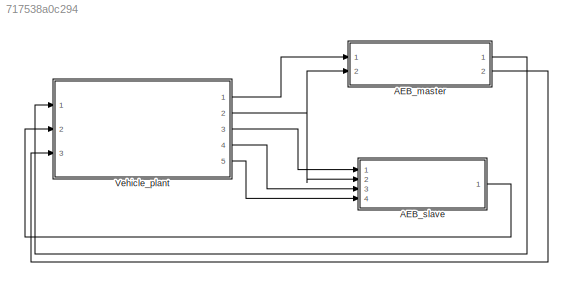
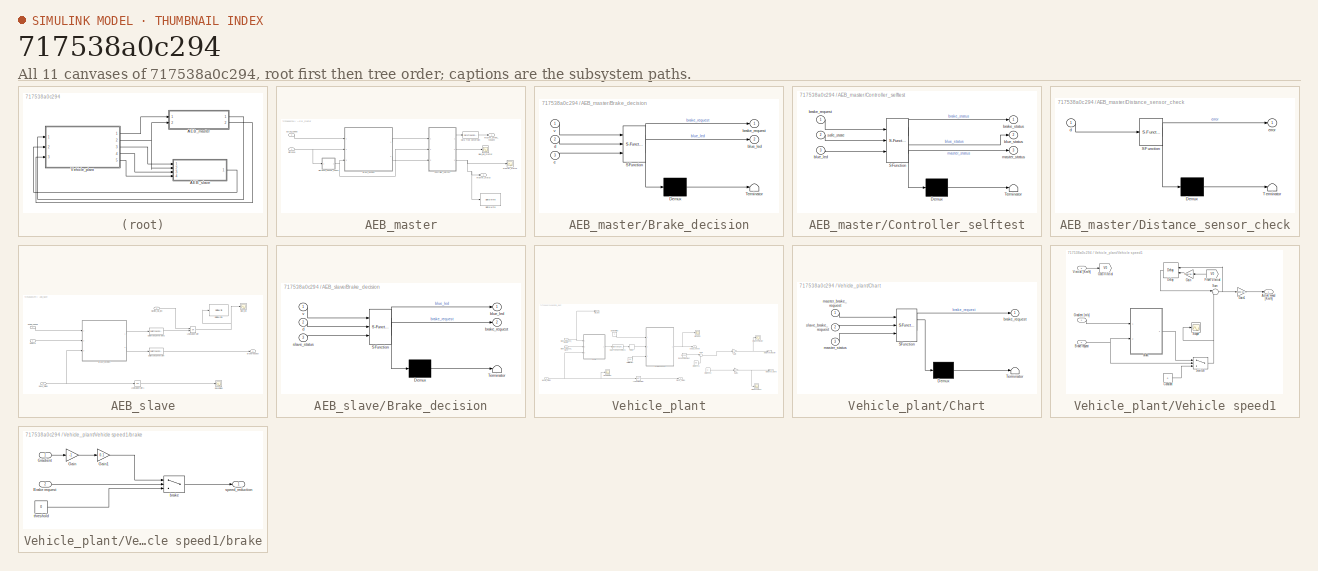
[diagram: thumbnail index - all 11 canvases of the model, root first then tree order]
MODEL slx_717538a0c294
KIND model
CONFIG AbsTol = auto
CONFIG FixedStep = 0.1
CONFIG MaxStep = auto
CONFIG MinStep = auto
CONFIG RelTol = 1e-3
CONFIG SampleTimeConstraint = Unconstrained
CONFIG Solver = FixedStepDiscrete
CONFIG SolverMode = Auto
CONFIG SolverName = FixedStepDiscrete
CONFIG StartTime = 0.0
CONFIG StopTime = inf
BLOCK [SubSystem] AEB_master
  Ports = [2, 2]
  RequestExecContextInheritance = off
  Variant = off
BLOCK [Scope] AEB_master/Blue_led_master
  Ports = [1]
  ScopeSpecificationString = Simulink.scopes.TimeScopeBlockCfg('CurrentConfiguration', extmgr.ConfigurationSet(extmgr.Configuration('Core','General UI',true),extmgr.Configuration('Core','Source UI',true),extmgr.Configuration('Sources','WiredSimulink',true,'DataLoggingVariableName','ScopeData1'),extmgr.Configuration('Visuals','Time Domain',true,'SerializedDisplays',{struct('MinYLimReal','-0.125','MaxYLimReal','1.125','YLabelRe...<+1481ch>
BLOCK [SubSystem] AEB_master/Brake_decision
  ErrorFcn = Stateflow.Translate.translate
  PermitHierarchicalResolution = ExplicitOnly
  Ports = [3, 2]
  RequestExecContextInheritance = off
  SFBlockType = Chart
  TreatAsAtomicUnit = on
  Variant = off
BLOCK [Demux] AEB_master/Brake_decision/ Demux 
  Outputs = 1
  Ports = [1, 1]
BLOCK [S-Function] AEB_master/Brake_decision/ SFunction 
  EnableBusSupport = on
  FunctionName = sf_sfun
  PortCounts = [3 3]
  Ports = [3, 3]
  SFunctionDeploymentMode = off
  Tag = Stateflow S-Function aebMS 3
BLOCK [Terminator] AEB_master/Brake_decision/ Terminator 
BLOCK [Outport] AEB_master/Brake_decision/blue_led
  IconDisplay = Port number
  Port = 2
BLOCK [Outport] AEB_master/Brake_decision/brake_request
  IconDisplay = Port number
BLOCK [Inport] AEB_master/Brake_decision/d
  IconDisplay = Port number
  Port = 2
BLOCK [Inport] AEB_master/Brake_decision/e
  IconDisplay = Port number
  Port = 3
BLOCK [Inport] AEB_master/Brake_decision/v
  IconDisplay = Port number
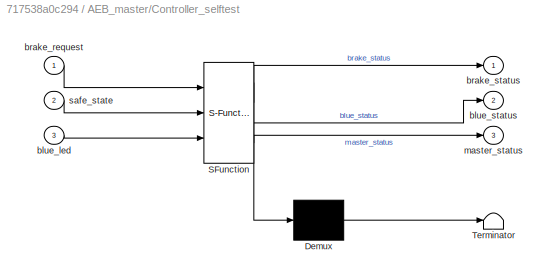
BLOCK [SubSystem] AEB_master/Controller_selftest
  ErrorFcn = Stateflow.Translate.translate
  PermitHierarchicalResolution = ExplicitOnly
  Ports = [3, 3]
  RequestExecContextInheritance = off
  SFBlockType = Chart
  TreatAsAtomicUnit = on
  Variant = off
BLOCK [Demux] AEB_master/Controller_selftest/ Demux 
  Outputs = 1
  Ports = [1, 1]
BLOCK [S-Function] AEB_master/Controller_selftest/ SFunction 
  EnableBusSupport = on
  FunctionName = sf_sfun
  PortCounts = [3 4]
  Ports = [3, 4]
  SFunctionDeploymentMode = off
  Tag = Stateflow S-Function aebMS 2
BLOCK [Terminator] AEB_master/Controller_selftest/ Terminator 
BLOCK [Inport] AEB_master/Controller_selftest/blue_led
  IconDisplay = Port number
  Port = 3
BLOCK [Outport] AEB_master/Controller_selftest/blue_status
  IconDisplay = Port number
  Port = 2
BLOCK [Inport] AEB_master/Controller_selftest/brake_request
  IconDisplay = Port number
BLOCK [Outport] AEB_master/Controller_selftest/brake_status
  IconDisplay = Port number
BLOCK [Outport] AEB_master/Controller_selftest/master_status
  IconDisplay = Port number
  Port = 3
BLOCK [Inport] AEB_master/Controller_selftest/safe_state
  IconDisplay = Port number
  Port = 2
BLOCK [DataTypeConversion] AEB_master/Data Type Conversion
  RndMeth = Floor
  SaturateOnIntegerOverflow = off
BLOCK [Reference] AEB_master/Digital Write  REF=frdmk64flib/Digital Write
  Ports = [1]
  SourceBlock = frdmk64flib/Digital Write
  SourceType = freedomk64f.DigitalWrite
BLOCK [SubSystem] AEB_master/Distance_sensor_check
  ErrorFcn = Stateflow.Translate.translate
  PermitHierarchicalResolution = ExplicitOnly
  Ports = [1, 1]
  RequestExecContextInheritance = off
  SFBlockType = Chart
  TreatAsAtomicUnit = on
  Variant = off
BLOCK [Demux] AEB_master/Distance_sensor_check/ Demux 
  Outputs = 1
  Ports = [1, 1]
BLOCK [S-Function] AEB_master/Distance_sensor_check/ SFunction 
  EnableBusSupport = on
  FunctionName = sf_sfun
  PortCounts = [1 2]
  Ports = [1, 2]
  SFunctionDeploymentMode = off
  Tag = Stateflow S-Function aebMS 1
BLOCK [Terminator] AEB_master/Distance_sensor_check/ Terminator 
BLOCK [Inport] AEB_master/Distance_sensor_check/d
  IconDisplay = Port number
BLOCK [Outport] AEB_master/Distance_sensor_check/error
  IconDisplay = Port number
BLOCK [Scope] AEB_master/Master_status
  Ports = [1]
  ScopeSpecificationString = Simulink.scopes.TimeScopeBlockCfg('CurrentConfiguration', extmgr.ConfigurationSet(extmgr.Configuration('Core','General UI',true),extmgr.Configuration('Core','Source UI',true),extmgr.Configuration('Sources','WiredSimulink',true,'DataLoggingVariableName','ScopeData2'),extmgr.Configuration('Visuals','Time Domain',true,'SerializedDisplays',{struct('MinYLimReal','-0.125','MaxYLimReal','1.125','YLabelRe...<+1478ch>
BLOCK [Inport] AEB_master/actual_speed
  IconDisplay = Port number
  Port = 2
BLOCK [Inport] AEB_master/distance
  IconDisplay = Port number
BLOCK [Outport] AEB_master/master_brake_request
  IconDisplay = Port number
BLOCK [Outport] AEB_master/master_status
  IconDisplay = Port number
  Port = 2
BLOCK [SubSystem] AEB_slave
  Ports = [4, 1]
  RequestExecContextInheritance = off
  Variant = off
BLOCK [Scope] AEB_slave/Blue_led
  Ports = [1]
  ScopeSpecificationString = Simulink.scopes.TimeScopeBlockCfg('CurrentConfiguration', extmgr.ConfigurationSet(extmgr.Configuration('Core','General UI',true),extmgr.Configuration('Core','Source UI',true),extmgr.Configuration('Sources','WiredSimulink',true,'DataLoggingVariableName','ScopeData1'),extmgr.Configuration('Visuals','Time Domain',true,'SerializedDisplays',{struct('MinYLimReal','-0.125','MaxYLimReal','1.125','YLabelRe...<+1461ch>
BLOCK [SubSystem] AEB_slave/Brake_decision
  ErrorFcn = Stateflow.Translate.translate
  PermitHierarchicalResolution = ExplicitOnly
  Ports = [3, 2]
  RequestExecContextInheritance = off
  SFBlockType = Chart
  TreatAsAtomicUnit = on
  Variant = off
BLOCK [Demux] AEB_slave/Brake_decision/ Demux 
  Outputs = 1
  Ports = [1, 1]
BLOCK [S-Function] AEB_slave/Brake_decision/ SFunction 
  EnableBusSupport = on
  FunctionName = sf_sfun
  PortCounts = [3 3]
  Ports = [3, 3]
  SFunctionDeploymentMode = off
  Tag = Stateflow S-Function aebMS 4
BLOCK [Terminator] AEB_slave/Brake_decision/ Terminator 
BLOCK [Outport] AEB_slave/Brake_decision/blue_led
  IconDisplay = Port number
BLOCK [Outport] AEB_slave/Brake_decision/brake_request
  IconDisplay = Port number
  Port = 2
BLOCK [Inport] AEB_slave/Brake_decision/d
  IconDisplay = Port number
  Port = 2
BLOCK [Inport] AEB_slave/Brake_decision/slave_status
  IconDisplay = Port number
  Port = 3
BLOCK [Inport] AEB_slave/Brake_decision/v
  IconDisplay = Port number
BLOCK [DataTypeConversion] AEB_slave/Data Type Conversion
  OutDataTypeStr = boolean
  RndMeth = Floor
  SaturateOnIntegerOverflow = off
BLOCK [DataTypeConversion] AEB_slave/Data Type Conversion2
  OutDataTypeStr = boolean
  RndMeth = Floor
  SaturateOnIntegerOverflow = off
BLOCK [Reference] AEB_slave/Digital Write1  REF=frdmk64flib/Digital Write
  Ports = [1]
  SourceBlock = frdmk64flib/Digital Write
  SourceType = freedomk64f.DigitalWrite
BLOCK [Logic] AEB_slave/Logical Operator
  AllPortsSameDT = off
  Operator = OR
  OutDataTypeStr = boolean
  Ports = [2, 1]
BLOCK [Logic] AEB_slave/Logical Operator1
  AllPortsSameDT = off
  Operator = NOT
  OutDataTypeStr = boolean
  Ports = [1, 1]
BLOCK [Inport] AEB_slave/Masted_blu_led
  IconDisplay = Port number
  Port = 4
BLOCK [Scope] AEB_slave/SlaveStatus
  Ports = [1]
  ScopeSpecificationString = Simulink.scopes.TimeScopeBlockCfg('CurrentConfiguration', extmgr.ConfigurationSet(extmgr.Configuration('Core','General UI',true),extmgr.Configuration('Core','Source UI',true),extmgr.Configuration('Sources','WiredSimulink',true,'DataLoggingVariableName','ScopeData2'),extmgr.Configuration('Visuals','Time Domain',true,'SerializedDisplays',{struct('MinYLimReal','-0.05421','MaxYLimReal','1.02659','YLab...<+1450ch>
BLOCK [Inport] AEB_slave/actual_speed
  IconDisplay = Port number
  Port = 2
BLOCK [Outport] AEB_slave/brake request
  IconDisplay = Port number
  OutDataTypeStr = boolean
BLOCK [Inport] AEB_slave/distance
  IconDisplay = Port number
BLOCK [Inport] AEB_slave/slave_status
  IconDisplay = Port number
  Port = 3
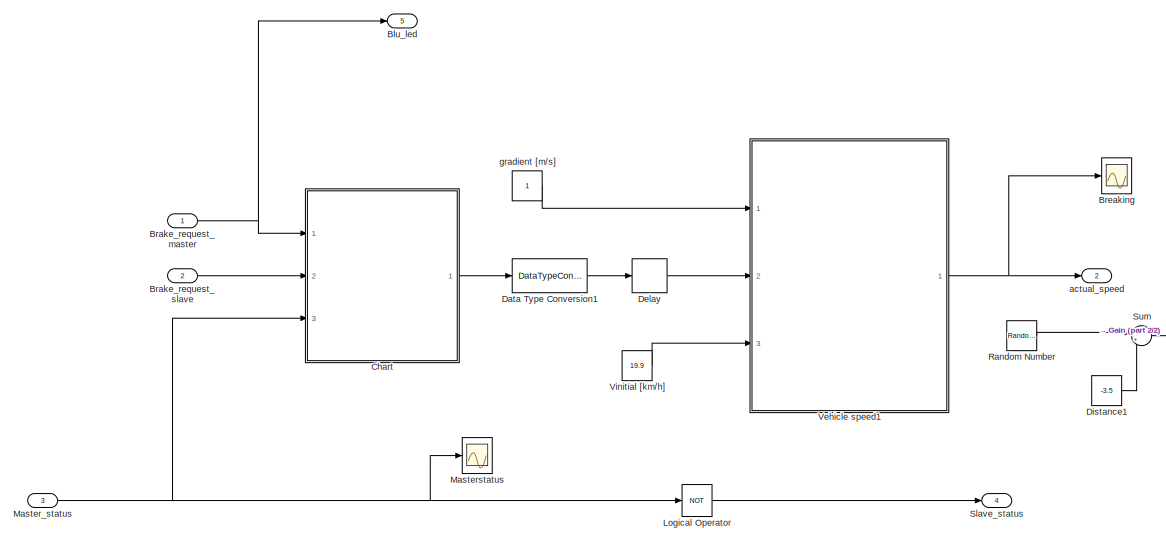
[diagram: Vehicle_plant - part 1/2, center side, full height]
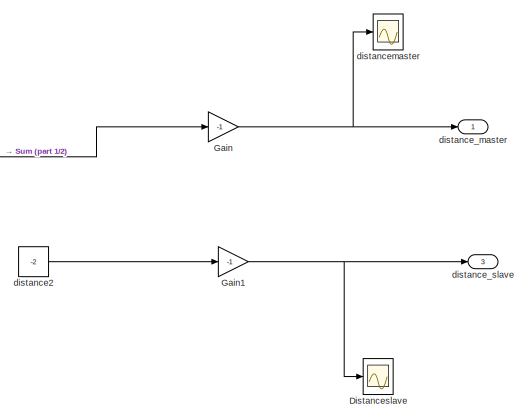
[diagram: Vehicle_plant - part 2/2, middle right region]
BLOCK [SubSystem] Vehicle_plant
  Ports = [3, 5]
  RequestExecContextInheritance = off
  Variant = off
BLOCK [Outport] Vehicle_plant/Blu_led
  IconDisplay = Port number
  Port = 5
BLOCK [Inport] Vehicle_plant/Brake_request_master
  IconDisplay = Port number
  OutDataTypeStr = boolean
BLOCK [Inport] Vehicle_plant/Brake_request_slave
  IconDisplay = Port number
  Port = 2
BLOCK [Scope] Vehicle_plant/Breaking
  Ports = [1]
  ScopeSpecificationString = Simulink.scopes.TimeScopeBlockCfg('CurrentConfiguration', extmgr.ConfigurationSet(extmgr.Configuration('Core','General UI',true),extmgr.Configuration('Core','Source UI',true),extmgr.Configuration('Sources','WiredSimulink',true,'DataLoggingVariableName','ScopeData1'),extmgr.Configuration('Visuals','Time Domain',true,'SerializedDisplays',{struct('MinYLimReal','17.065','MaxYLimReal','20.215','YLabelR...<+1466ch>
BLOCK [SubSystem] Vehicle_plant/Chart
  ErrorFcn = Stateflow.Translate.translate
  PermitHierarchicalResolution = ExplicitOnly
  Ports = [3, 1]
  RequestExecContextInheritance = off
  SFBlockType = Chart
  TreatAsAtomicUnit = on
  Variant = off
BLOCK [Demux] Vehicle_plant/Chart/ Demux 
  Outputs = 1
  Ports = [1, 1]
BLOCK [S-Function] Vehicle_plant/Chart/ SFunction 
  EnableBusSupport = on
  FunctionName = sf_sfun
  PortCounts = [3 2]
  Ports = [3, 2]
  SFunctionDeploymentMode = off
  Tag = Stateflow S-Function aebMS 8
BLOCK [Terminator] Vehicle_plant/Chart/ Terminator 
BLOCK [Outport] Vehicle_plant/Chart/brake_request
  IconDisplay = Port number
BLOCK [Inport] Vehicle_plant/Chart/master_brake_request
  IconDisplay = Port number
BLOCK [Inport] Vehicle_plant/Chart/master_status
  IconDisplay = Port number
  Port = 3
BLOCK [Inport] Vehicle_plant/Chart/slave_brake_request
  IconDisplay = Port number
  Port = 2
BLOCK [DataTypeConversion] Vehicle_plant/Data Type Conversion1
  RndMeth = Floor
  SaturateOnIntegerOverflow = off
BLOCK [Delay] Vehicle_plant/Delay
  DelayLength = 1
  InitialCondition = 0
  InputPortMap = u0
  Ports = [1, 1]
BLOCK [Constant] Vehicle_plant/Distance1
  Value = -3.5
BLOCK [Scope] Vehicle_plant/Distanceslave
  Ports = [1]
  ScopeSpecificationString = Simulink.scopes.TimeScopeBlockCfg('CurrentConfiguration', extmgr.ConfigurationSet(extmgr.Configuration('Core','General UI',true),extmgr.Configuration('Core','Source UI',true),extmgr.Configuration('Sources','WiredSimulink',true,'DataLoggingVariableName','ScopeData1'),extmgr.Configuration('Visuals','Time Domain',true,'SerializedDisplays',{struct('MinYLimReal','-92.6','MaxYLimReal','32.4','YLabelReal...<+1458ch>
BLOCK [Gain] Vehicle_plant/Gain
  Gain = -1
  OutDataTypeStr = Inherit: Inherit via internal rule
  ParamDataTypeStr = Inherit: Inherit via internal rule
  SaturateOnIntegerOverflow = off
BLOCK [Gain] Vehicle_plant/Gain1
  Gain = -1
  OutDataTypeStr = Inherit: Inherit via internal rule
  ParamDataTypeStr = Inherit: Inherit via internal rule
  SaturateOnIntegerOverflow = off
BLOCK [Logic] Vehicle_plant/Logical Operator
  AllPortsSameDT = off
  Operator = NOT
  OutDataTypeStr = boolean
  Ports = [1, 1]
BLOCK [Inport] Vehicle_plant/Master_status
  IconDisplay = Port number
  Port = 3
BLOCK [Scope] Vehicle_plant/Masterstatus
  Ports = [1]
  ScopeSpecificationString = Simulink.scopes.TimeScopeBlockCfg('CurrentConfiguration', extmgr.ConfigurationSet(extmgr.Configuration('Core','General UI',true),extmgr.Configuration('Core','Source UI',true),extmgr.Configuration('Sources','WiredSimulink',true,'DataLoggingVariableName','ScopeData1'),extmgr.Configuration('Visuals','Time Domain',true,'SerializedDisplays',{struct('MinYLimReal','-1.00000','MaxYLimReal','1.00000','YLab...<+1447ch>
BLOCK [RandomNumber] Vehicle_plant/Random Number
  Mean = 0.5
  SampleTime = 0.1
  Variance = .5
BLOCK [Outport] Vehicle_plant/Slave_status
  IconDisplay = Port number
  Port = 4
BLOCK [Sum] Vehicle_plant/Sum
  IconShape = round
  InputSameDT = off
  Inputs = |++
  OutDataTypeStr = Inherit: Inherit via internal rule
  Ports = [2, 1]
  SaturateOnIntegerOverflow = off
BLOCK [SubSystem] Vehicle_plant/Vehicle speed1
  Ports = [3, 1]
  RequestExecContextInheritance = off
  Variant = off
BLOCK [Outport] Vehicle_plant/Vehicle speed1/Actual speed [Km//h]
  IconDisplay = Port number
BLOCK [Inport] Vehicle_plant/Vehicle speed1/Brake request
  IconDisplay = Port number
  Port = 2
BLOCK [Constant] Vehicle_plant/Vehicle speed1/Constant
  Value = 0
BLOCK [Delay] Vehicle_plant/Vehicle speed1/Delay
  DelayLength = 1
  InitialCondition = 0
  InitialConditionSource = Input port
  InputPortMap = u0,p4
  Ports = [2, 1]
BLOCK [From] Vehicle_plant/Vehicle speed1/From Vinitial
  GotoTag = V0
BLOCK [Gain] Vehicle_plant/Vehicle speed1/Gain
  Gain = 1000/3600
  OutDataTypeStr = Inherit: Inherit via internal rule
  ParamDataTypeStr = Inherit: Inherit via internal rule
  SaturateOnIntegerOverflow = off
BLOCK [Gain] Vehicle_plant/Vehicle speed1/Gain1
  Gain = 3600/1000
  OutDataTypeStr = Inherit: Inherit via internal rule
  ParamDataTypeStr = Inherit: Inherit via internal rule
  SaturateOnIntegerOverflow = off
BLOCK [Goto] Vehicle_plant/Vehicle speed1/Goto Vinitial
  GotoTag = V0
BLOCK [Inport] Vehicle_plant/Vehicle speed1/Gradient [m//s]
  IconDisplay = Port number
BLOCK [Scope] Vehicle_plant/Vehicle speed1/Scope
  Ports = [1]
  ScopeSpecificationString = Simulink.scopes.TimeScopeBlockCfg('CurrentConfiguration', extmgr.ConfigurationSet(extmgr.Configuration('Core','General UI',true),extmgr.Configuration('Core','Source UI',true),extmgr.Configuration('Sources','WiredSimulink',true,'DataLoggingVariableName','ScopeData1'),extmgr.Configuration('Visuals','Time Domain',true,'SerializedDisplays',{struct('MinYLimReal','-0.1125','MaxYLimReal','0.0125','YLabel...<+1414ch>
BLOCK [Sum] Vehicle_plant/Vehicle speed1/Sum
  IconShape = round
  InputSameDT = off
  Inputs = |++
  OutDataTypeStr = Inherit: Inherit via internal rule
  Ports = [2, 1]
  SaturateOnIntegerOverflow = off
BLOCK [Switch] Vehicle_plant/Vehicle speed1/Switch
  Criteria = u2 > Threshold
  InputSameDT = off
  SaturateOnIntegerOverflow = off
BLOCK [Inport] Vehicle_plant/Vehicle speed1/Vinitial [Km//h]
  IconDisplay = Port number
  Port = 3
BLOCK [SubSystem] Vehicle_plant/Vehicle speed1/brake
  Ports = [2, 1]
  RequestExecContextInheritance = off
  Variant = off
BLOCK [Inport] Vehicle_plant/Vehicle speed1/brake/Brake request
  IconDisplay = Port number
  Port = 2
BLOCK [Gain] Vehicle_plant/Vehicle speed1/brake/Gain
  Gain = -1
  OutDataTypeStr = Inherit: Inherit via internal rule
  ParamDataTypeStr = Inherit: Inherit via internal rule
  SaturateOnIntegerOverflow = off
BLOCK [Gain] Vehicle_plant/Vehicle speed1/brake/Gain1
  Gain = 0.1
  OutDataTypeStr = Inherit: Inherit via internal rule
  ParamDataTypeStr = Inherit: Inherit via internal rule
  SaturateOnIntegerOverflow = off
BLOCK [Inport] Vehicle_plant/Vehicle speed1/brake/Gradient
  IconDisplay = Port number
BLOCK [Switch] Vehicle_plant/Vehicle speed1/brake/brake
  Criteria = u2 > Threshold
  InputSameDT = off
  SaturateOnIntegerOverflow = off
BLOCK [Outport] Vehicle_plant/Vehicle speed1/brake/speed_reduction
  IconDisplay = Port number
BLOCK [Constant] Vehicle_plant/Vehicle speed1/brake/threshold
  Value = 0
BLOCK [Constant] Vehicle_plant/Vinitial [km//h]
  Value = 19.9
BLOCK [Outport] Vehicle_plant/actual_speed
  IconDisplay = Port number
  Port = 2
BLOCK [Constant] Vehicle_plant/distance2
  Value = -2
BLOCK [Outport] Vehicle_plant/distance_master
  IconDisplay = Port number
BLOCK [Outport] Vehicle_plant/distance_slave
  IconDisplay = Port number
  Port = 3
BLOCK [Scope] Vehicle_plant/distancemaster
  Ports = [1]
  ScopeSpecificationString = Simulink.scopes.TimeScopeBlockCfg('CurrentConfiguration', extmgr.ConfigurationSet(extmgr.Configuration('Core','General UI',true),extmgr.Configuration('Core','Source UI',true),extmgr.Configuration('Sources','WiredSimulink',true,'DataLoggingVariableName','ScopeData1'),extmgr.Configuration('Visuals','Time Domain',true,'SerializedDisplays',{struct('MinYLimReal','0.67484','MaxYLimReal','4.6535','YLabel...<+1493ch>
BLOCK [Constant] Vehicle_plant/gradient [m//s]
LINE AEB_master/Brake_decision:1 -> AEB_master/Controller_selftest:1
LINE AEB_master/Brake_decision:2 -> AEB_master/Controller_selftest:3
LINE AEB_master/Controller_selftest:1 -> AEB_master/Data Type Conversion:1
LINE AEB_master/Controller_selftest:2 -> AEB_master/Blue_led_master:1
NET AEB_master/Controller_selftest:3 -> AEB_master/Digital Write:1, AEB_master/Master_status:1, AEB_master/master_status:1
LINE AEB_master/Data Type Conversion:1 -> AEB_master/master_brake_request:1
NET AEB_master/Distance_sensor_check:1 -> AEB_master/Brake_decision:3, AEB_master/Controller_selftest:2
LINE AEB_master/actual_speed:1 -> AEB_master/Brake_decision:1
NET AEB_master/distance:1 -> AEB_master/Brake_decision:2, AEB_master/Distance_sensor_check:1
LINE AEB_master:1 -> Vehicle_plant:1
LINE AEB_master:2 -> Vehicle_plant:3
LINE AEB_slave/Brake_decision:1 -> AEB_slave/Data Type Conversion2:1
LINE AEB_slave/Brake_decision:2 -> AEB_slave/Data Type Conversion:1
LINE AEB_slave/Data Type Conversion2:1 -> AEB_slave/Logical Operator:2
LINE AEB_slave/Data Type Conversion:1 -> AEB_slave/brake request:1
LINE AEB_slave/Logical Operator1:1 -> AEB_slave/SlaveStatus:1
NET AEB_slave/Logical Operator:1 -> AEB_slave/Blue_led:1, AEB_slave/Digital Write1:1
LINE AEB_slave/Masted_blu_led:1 -> AEB_slave/Logical Operator:1
LINE AEB_slave/actual_speed:1 -> AEB_slave/Brake_decision:1
LINE AEB_slave/distance:1 -> AEB_slave/Brake_decision:2
NET AEB_slave/slave_status:1 -> AEB_slave/Brake_decision:3, AEB_slave/Logical Operator1:1
LINE AEB_slave:1 -> Vehicle_plant:2
NET Vehicle_plant/Brake_request_master:1 -> Vehicle_plant/Blu_led:1, Vehicle_plant/Chart:1
LINE Vehicle_plant/Brake_request_slave:1 -> Vehicle_plant/Chart:2
LINE Vehicle_plant/Chart:1 -> Vehicle_plant/Data Type Conversion1:1
LINE Vehicle_plant/Data Type Conversion1:1 -> Vehicle_plant/Delay:1
LINE Vehicle_plant/Delay:1 -> Vehicle_plant/Vehicle speed1:2
LINE Vehicle_plant/Distance1:1 -> Vehicle_plant/Sum:2
NET Vehicle_plant/Gain1:1 -> Vehicle_plant/Distanceslave:1, Vehicle_plant/distance_slave:1
NET Vehicle_plant/Gain:1 -> Vehicle_plant/distance_master:1, Vehicle_plant/distancemaster:1
LINE Vehicle_plant/Logical Operator:1 -> Vehicle_plant/Slave_status:1
NET Vehicle_plant/Master_status:1 -> Vehicle_plant/Chart:3, Vehicle_plant/Logical Operator:1, Vehicle_plant/Masterstatus:1
LINE Vehicle_plant/Random Number:1 -> Vehicle_plant/Sum:1
LINE Vehicle_plant/Sum:1 -> Vehicle_plant/Gain:1
NET Vehicle_plant/Vehicle speed1/Brake request:1 -> Vehicle_plant/Vehicle speed1/Switch:2, Vehicle_plant/Vehicle speed1/brake:2
LINE Vehicle_plant/Vehicle speed1/Constant:1 -> Vehicle_plant/Vehicle speed1/Switch:3
LINE Vehicle_plant/Vehicle speed1/Delay:1 -> Vehicle_plant/Vehicle speed1/Sum:1
LINE Vehicle_plant/Vehicle speed1/From Vinitial:1 -> Vehicle_plant/Vehicle speed1/Gain:1
LINE Vehicle_plant/Vehicle speed1/Gain1:1 -> Vehicle_plant/Vehicle speed1/Actual speed [Km//h]:1
LINE Vehicle_plant/Vehicle speed1/Gain:1 -> Vehicle_plant/Vehicle speed1/Delay:2
LINE Vehicle_plant/Vehicle speed1/Gradient [m//s]:1 -> Vehicle_plant/Vehicle speed1/brake:1
NET Vehicle_plant/Vehicle speed1/Sum:1 -> Vehicle_plant/Vehicle speed1/Delay:1, Vehicle_plant/Vehicle speed1/Gain1:1
NET Vehicle_plant/Vehicle speed1/Switch:1 -> Vehicle_plant/Vehicle speed1/Scope:1, Vehicle_plant/Vehicle speed1/Sum:2
LINE Vehicle_plant/Vehicle speed1/Vinitial [Km//h]:1 -> Vehicle_plant/Vehicle speed1/Goto Vinitial:1
LINE Vehicle_plant/Vehicle speed1/brake/Brake request:1 -> Vehicle_plant/Vehicle speed1/brake/brake:2
LINE Vehicle_plant/Vehicle speed1/brake/Gain1:1 -> Vehicle_plant/Vehicle speed1/brake/brake:1
LINE Vehicle_plant/Vehicle speed1/brake/Gain:1 -> Vehicle_plant/Vehicle speed1/brake/Gain1:1
LINE Vehicle_plant/Vehicle speed1/brake/Gradient:1 -> Vehicle_plant/Vehicle speed1/brake/Gain:1
LINE Vehicle_plant/Vehicle speed1/brake/brake:1 -> Vehicle_plant/Vehicle speed1/brake/speed_reduction:1
LINE Vehicle_plant/Vehicle speed1/brake/threshold:1 -> Vehicle_plant/Vehicle speed1/brake/brake:3
LINE Vehicle_plant/Vehicle speed1/brake:1 -> Vehicle_plant/Vehicle speed1/Switch:1
NET Vehicle_plant/Vehicle speed1:1 -> Vehicle_plant/Breaking:1, Vehicle_plant/actual_speed:1
LINE Vehicle_plant/Vinitial [km//h]:1 -> Vehicle_plant/Vehicle speed1:3
LINE Vehicle_plant/distance2:1 -> Vehicle_plant/Gain1:1
LINE Vehicle_plant/gradient [m//s]:1 -> Vehicle_plant/Vehicle speed1:1
LINE Vehicle_plant:1 -> AEB_master:1
NET Vehicle_plant:2 -> AEB_master:2, AEB_slave:2
LINE Vehicle_plant:3 -> AEB_slave:1
LINE Vehicle_plant:4 -> AEB_slave:3
LINE Vehicle_plant:5 -> AEB_slave:4
note: NET lines group one-source signal fan-out (src -> all destinations, sorted); 1:1 wires keep LINE
CHART AEB_master/Distance_sensor_check states=2 transitions=2
  STATE_LABEL 'No_errors\nen:\nerror=0;'
  STATE_LABEL 'Yes_errors\nen:\nerror=1;'
CHART AEB_master/Controller_selftest states=2 transitions=2
  STATE_LABEL 'controller_ok\n\nen,du:\nbrake_status=brake_request;\nmaster_status=safe_state;\nblue_status=blue_led;\n'
  STATE_LABEL 'controller_ko\nen,du:\nmaster_status=1;\nblue_status=0;\nbrake_status=0;'
CHART AEB_master/Brake_decision states=2 transitions=3
  STATE_LABEL 'No_brake\nen:\nbrake_request= 0;\nblue_led=0;\n'
  STATE_LABEL 'brake\nen:\nbrake_request= 1;\nblue_led=1\n'
CHART AEB_slave/Brake_decision states=2 transitions=3
  STATE_LABEL 'No_brake\nen:\nbrake_request= 0;\nblue_led=0;\n'
  STATE_LABEL 'brake\nen:\nbrake_request= 1;\nblue_led=1\n'
CHART Vehicle_plant/Chart states=2 transitions=2
  STATE_LABEL 'master_ok\ndu:\nbrake_request=master_brake_request;'
  STATE_LABEL 'master_ko\ndu:\nbrake_request=slave_brake_request;\n'
